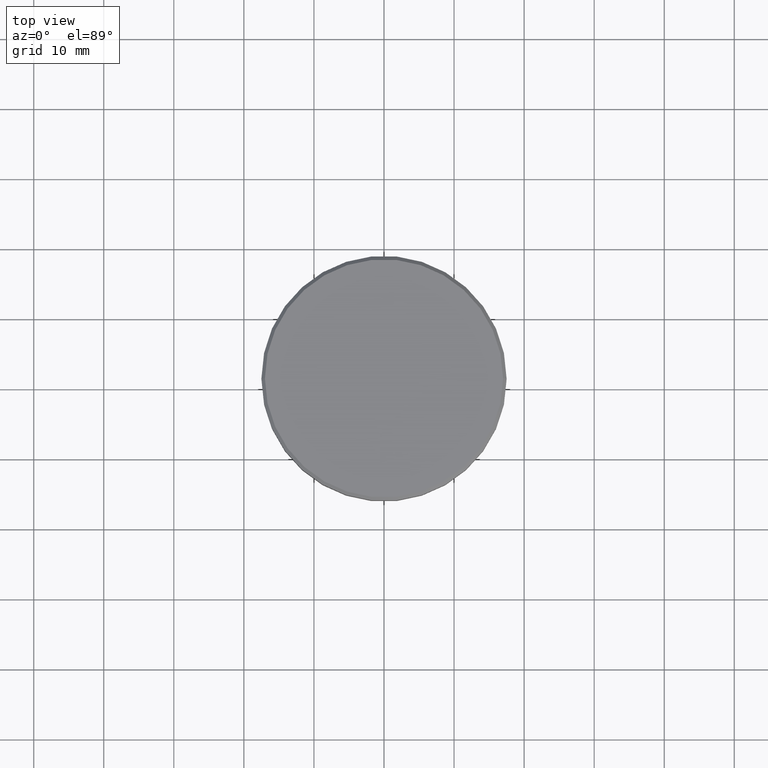
[diagram: clean part render]
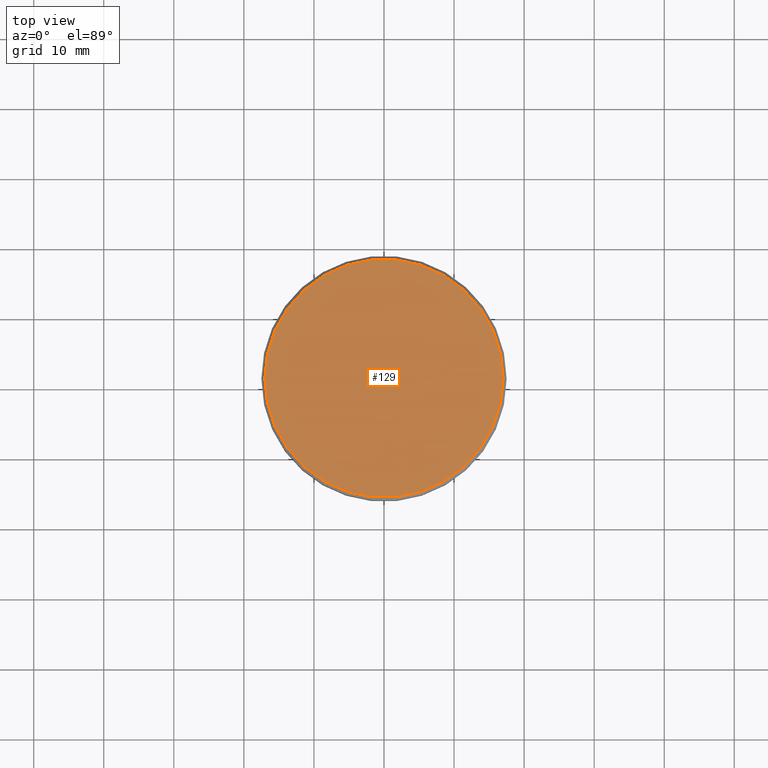
[diagram: same view with one face highlighted and labeled with its STEP entity id]
A machine part, top view. The second image highlights one B-rep face of the part: STEP entity #129.
In plain terms, the highlighted planar face has unit normal (0, -0, 1).
Its self-contained STEP definition (entity closure, byte-faithful):
#30 = CARTESIAN_POINT ( 'NONE',  ( 0.000000000000000000, 0.000000000000000000, 0.000000000000000000 ) ) ;
#129 = ADVANCED_FACE ( 'NONE', ( #726 ), #1004, .T. ) ;
#288 = CIRCLE ( 'NONE', #1177, 17.00000000000002842 ) ;
#303 = DIRECTION ( 'NONE',  ( 1.000000000000000000, 0.000000000000000000, 0.000000000000000000 ) ) ;
#340 = EDGE_CURVE ( 'NONE', #450, #687, #288, .T. ) ;
#388 = DIRECTION ( 'NONE',  ( 0.000000000000000000, -0.000000000000000000, 1.000000000000000000 ) ) ;
#400 = CARTESIAN_POINT ( 'NONE',  ( 0.000000000000000000, 0.000000000000000000, 0.000000000000000000 ) ) ;
#415 = EDGE_CURVE ( 'NONE', #687, #450, #1076, .T. ) ;
#442 = ORIENTED_EDGE ( 'NONE', *, *, #415, .T. ) ;
#450 = VERTEX_POINT ( 'NONE', #1153 ) ;
#458 = AXIS2_PLACEMENT_3D ( 'NONE', #400, #388, #573 ) ;
#573 = DIRECTION ( 'NONE',  ( 1.000000000000000000, 0.000000000000000000, 0.000000000000000000 ) ) ;
#647 = AXIS2_PLACEMENT_3D ( 'NONE', #30, #766, #673 ) ;
#673 = DIRECTION ( 'NONE',  ( 1.000000000000000000, 0.000000000000000000, 0.000000000000000000 ) ) ;
#687 = VERTEX_POINT ( 'NONE', #939 ) ;
#726 = FACE_OUTER_BOUND ( 'NONE', #1118, .T. ) ;
#766 = DIRECTION ( 'NONE',  ( -0.000000000000000000, -0.000000000000000000, 1.000000000000000000 ) ) ;
#768 = ORIENTED_EDGE ( 'NONE', *, *, #340, .T. ) ;
#850 = DIRECTION ( 'NONE',  ( -0.000000000000000000, -0.000000000000000000, 1.000000000000000000 ) ) ;
#939 = CARTESIAN_POINT ( 'NONE',  ( 17.00000000000002842, 2.112515728529186039E-15, 0.000000000000000000 ) ) ;
#1004 = PLANE ( 'NONE',  #458 ) ;
#1019 = CARTESIAN_POINT ( 'NONE',  ( 0.000000000000000000, 0.000000000000000000, 0.000000000000000000 ) ) ;
#1076 = CIRCLE ( 'NONE', #647, 17.00000000000002842 ) ;
#1118 = EDGE_LOOP ( 'NONE', ( #768, #442 ) ) ;
#1153 = CARTESIAN_POINT ( 'NONE',  ( -17.00000000000002842, 0.000000000000000000, 0.000000000000000000 ) ) ;
#1177 = AXIS2_PLACEMENT_3D ( 'NONE', #1019, #850, #303 ) ;